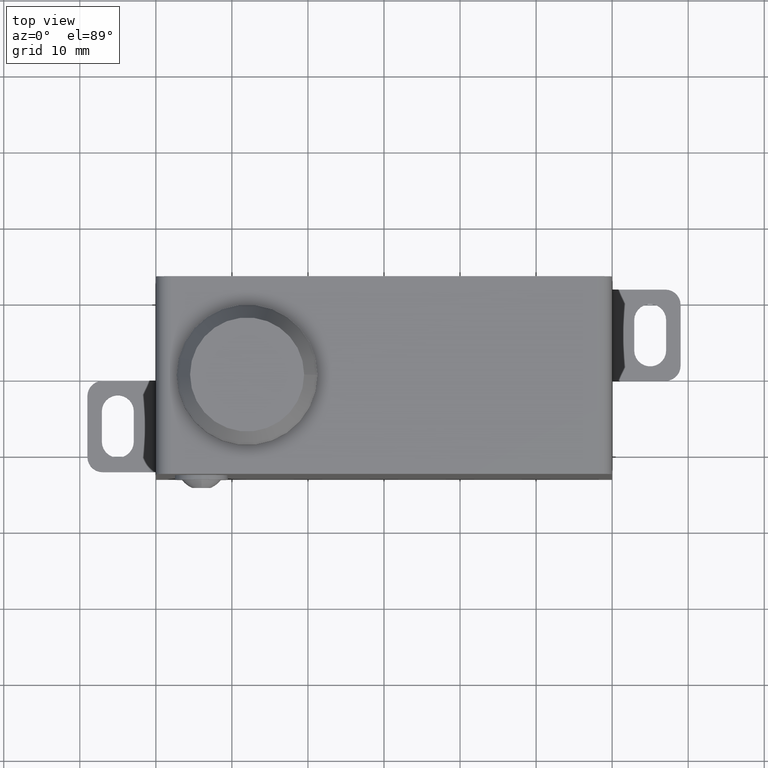
[diagram: clean part render]
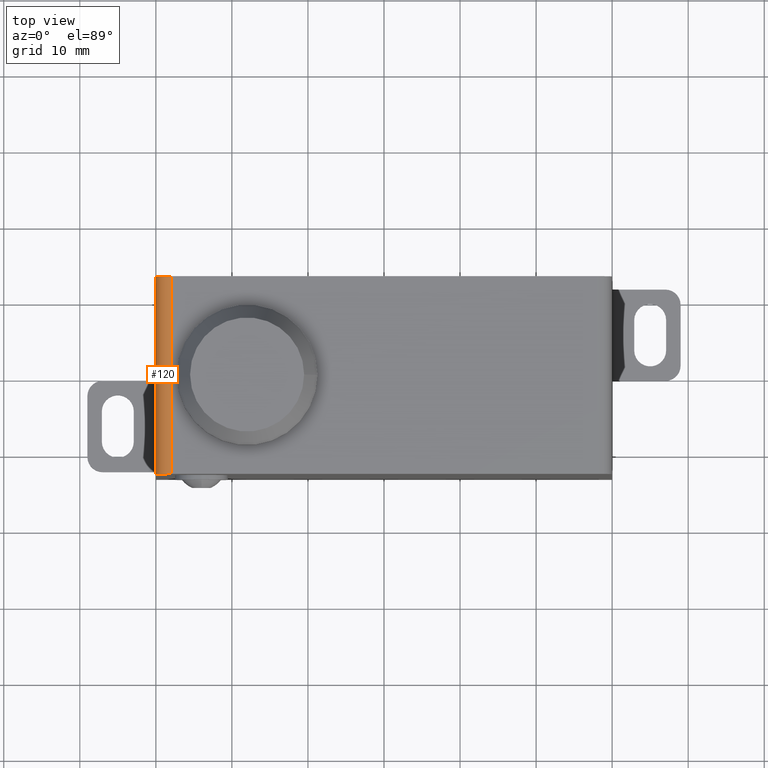
[diagram: same view with one face highlighted and labeled with its STEP entity id]
A machine part, top view. The second image highlights one B-rep face of the part: STEP entity #120.
In plain terms, the highlighted cylindrical surface (edge-blend (fillet) strip) has radius 2 mm, axis along (-0, 1, -0).
Its self-contained STEP definition (entity closure, byte-faithful):
#120 = ADVANCED_FACE( '', ( #273 ), #274, .T. );
#273 = FACE_OUTER_BOUND( '', #466, .T. );
#274 = CYLINDRICAL_SURFACE( '', #467, 2.00000000000000 );
#466 = EDGE_LOOP( '', ( #806, #807, #808, #809 ) );
#467 = AXIS2_PLACEMENT_3D( '', #810, #811, #812 );
#806 = ORIENTED_EDGE( '', *, *, #1253, .F. );
#807 = ORIENTED_EDGE( '', *, *, #1254, .F. );
#808 = ORIENTED_EDGE( '', *, *, #1255, .F. );
#809 = ORIENTED_EDGE( '', *, *, #1241, .F. );
#810 = CARTESIAN_POINT( '', ( -28.0000000000000, -13.0000000000000, 43.0000000000000 ) );
#811 = DIRECTION( '', ( -0.000000000000000, 1.00000000000000, -0.000000000000000 ) );
#812 = DIRECTION( '', ( 0.000000000000000, 0.000000000000000, -1.00000000000000 ) );
#1241 = EDGE_CURVE( '', #1507, #1509, #1510, .T. );
#1253 = EDGE_CURVE( '', #1525, #1507, #1526, .T. );
#1254 = EDGE_CURVE( '', #1527, #1525, #1528, .F. );
#1255 = EDGE_CURVE( '', #1509, #1527, #1529, .T. );
#1507 = VERTEX_POINT( '', #1870 );
#1509 = VERTEX_POINT( '', #1873 );
#1510 = LINE( '', #1874, #1875 );
#1525 = VERTEX_POINT( '', #1898 );
#1526 = CIRCLE( '', #1899, 2.00000000000000 );
#1527 = VERTEX_POINT( '', #1900 );
#1528 = LINE( '', #1901, #1902 );
#1529 = CIRCLE( '', #1903, 2.00000000000000 );
#1870 = CARTESIAN_POINT( '', ( -30.0000000000000, -13.0000000000000, 43.0000000000000 ) );
#1873 = CARTESIAN_POINT( '', ( -30.0000000000000, 13.0000000000000, 43.0000000000000 ) );
#1874 = CARTESIAN_POINT( '', ( -30.0000000000000, 13.0000000000000, 43.0000000000000 ) );
#1875 = VECTOR( '', #2167, 1000.00000000000 );
#1898 = CARTESIAN_POINT( '', ( -28.0000000000000, -13.0000000000000, 45.0000000000000 ) );
#1899 = AXIS2_PLACEMENT_3D( '', #2176, #2177, #2178 );
#1900 = CARTESIAN_POINT( '', ( -28.0000000000000, 13.0000000000000, 45.0000000000000 ) );
#1901 = CARTESIAN_POINT( '', ( -28.0000000000000, -13.0000000000000, 45.0000000000000 ) );
#1902 = VECTOR( '', #2179, 1000.00000000000 );
#1903 = AXIS2_PLACEMENT_3D( '', #2180, #2181, #2182 );
#2167 = DIRECTION( '', ( 0.000000000000000, 1.00000000000000, 0.000000000000000 ) );
#2176 = CARTESIAN_POINT( '', ( -28.0000000000000, -13.0000000000000, 43.0000000000000 ) );
#2177 = DIRECTION( '', ( 0.000000000000000, -1.00000000000000, 0.000000000000000 ) );
#2178 = DIRECTION( '', ( 0.000000000000000, 0.000000000000000, -1.00000000000000 ) );
#2179 = DIRECTION( '', ( -0.000000000000000, 1.00000000000000, 0.000000000000000 ) );
#2180 = CARTESIAN_POINT( '', ( -28.0000000000000, 13.0000000000000, 43.0000000000000 ) );
#2181 = DIRECTION( '', ( 0.000000000000000, 1.00000000000000, 0.000000000000000 ) );
#2182 = DIRECTION( '', ( 0.000000000000000, -0.000000000000000, 1.00000000000000 ) );